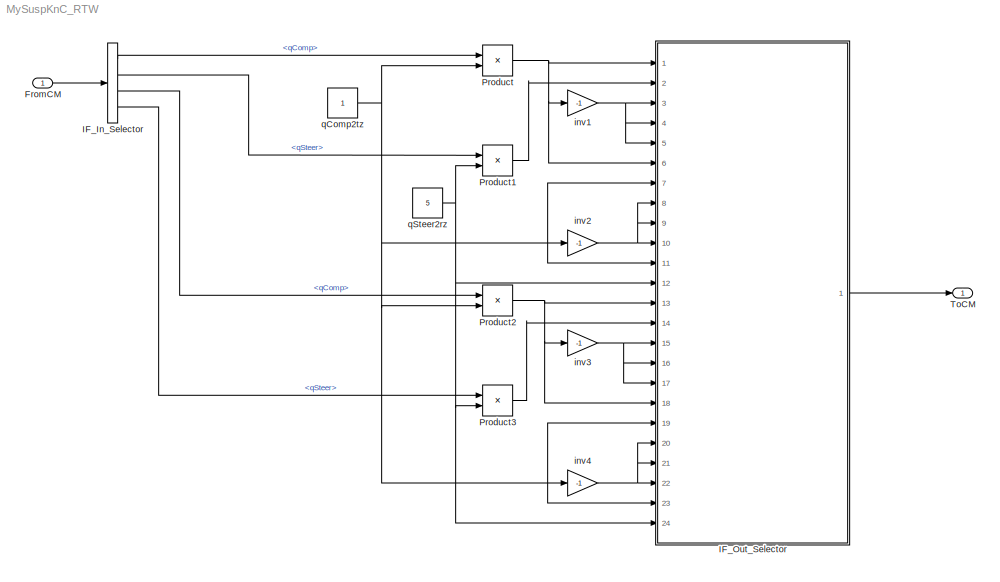
MODEL MySuspKnC_RTW
KIND model
CONFIG InitFcn = vehicle = 'Car'; if ~length(which('cmself')), cmenv; end\nMySuspKnC_RTW_bus
CONFIG PreLoadFcn = vehicle = 'Car'; if ~length(which('cmself')), cmenv; end\nMySuspKnC_RTW_bus
BLOCK [Inport] FromCM
  IconDisplay = Port number
  OutDataTypeStr = Bus: cmSuspKnCIn
  SID = 1
BLOCK [BusSelector] IF_In_Selector
  OutputAsBus = off
  OutputSignals = MainIn.qComp,MainIn.qSteer,OppIn.qComp,OppIn.qSteer
  Ports = [1, 4]
  SID = 2
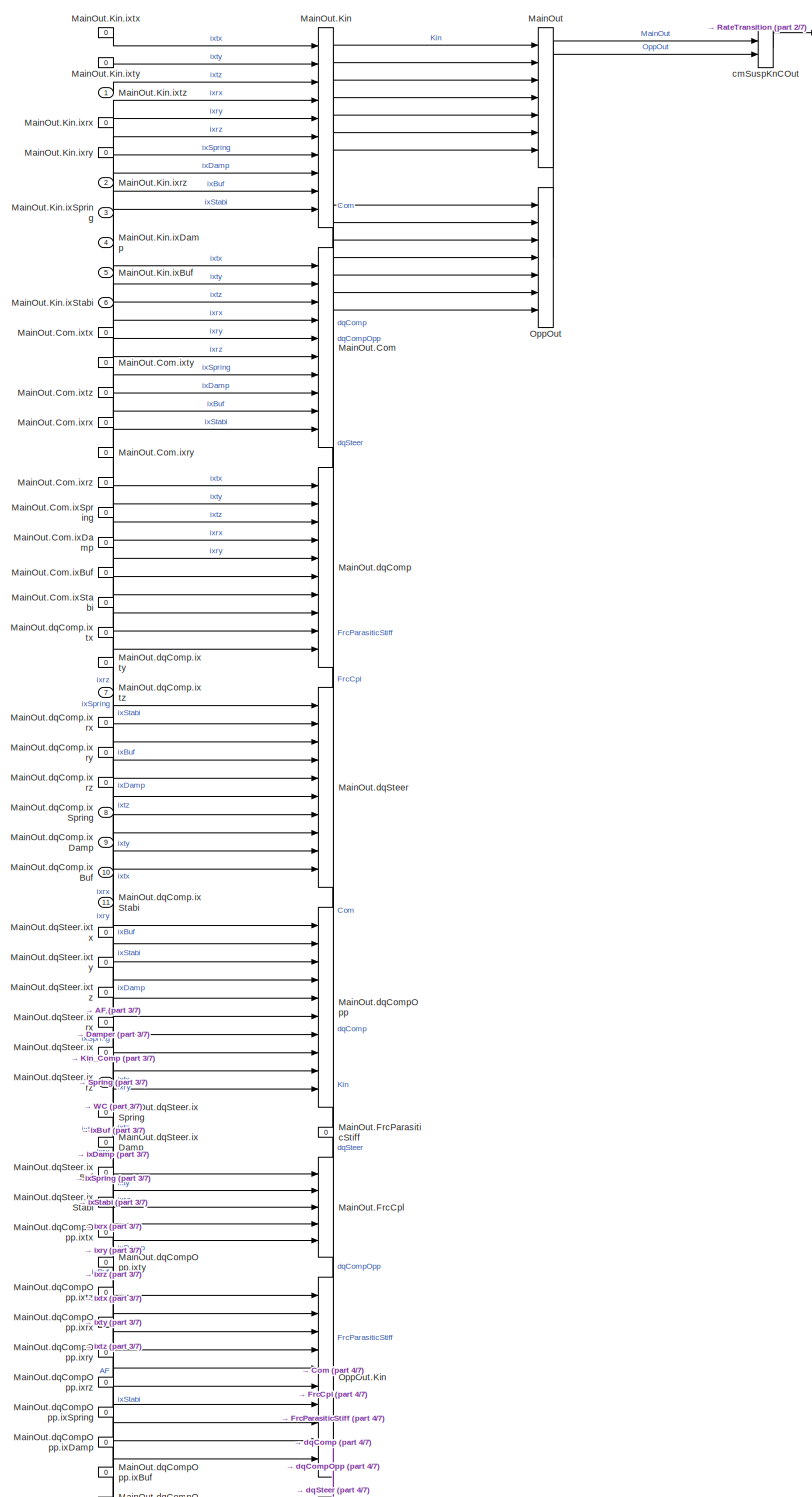
[diagram: IF_Out_Selector - part 1/7, top center region]
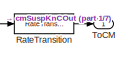
[diagram: IF_Out_Selector - part 2/7, top right region]
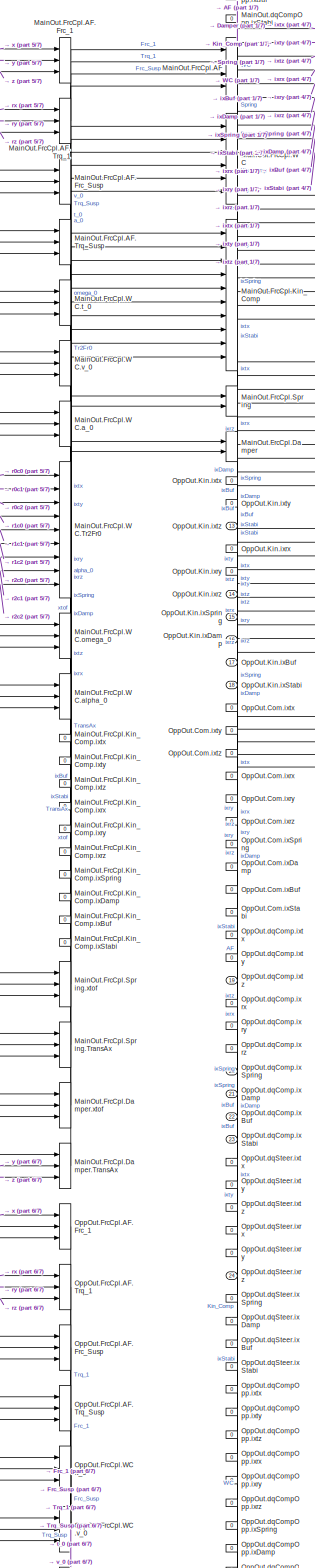
[diagram: IF_Out_Selector - part 3/7, middle left region]
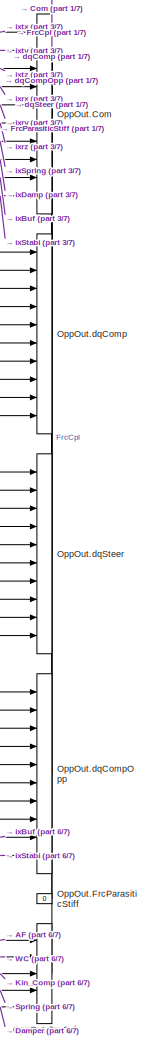
[diagram: IF_Out_Selector - part 4/7, central region]
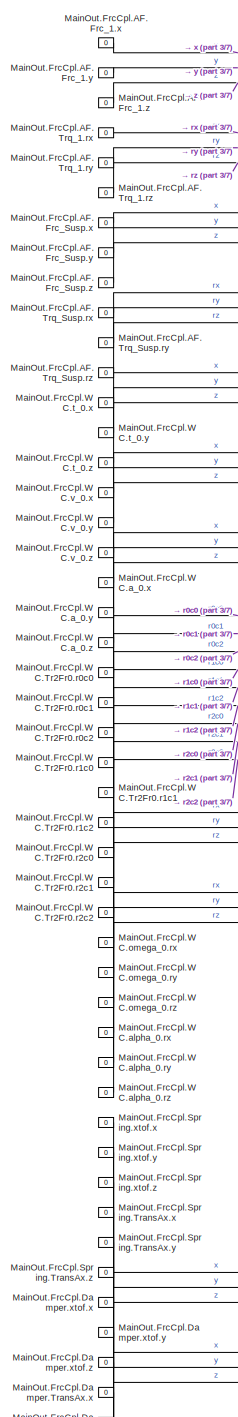
[diagram: IF_Out_Selector - part 5/7, middle left region]
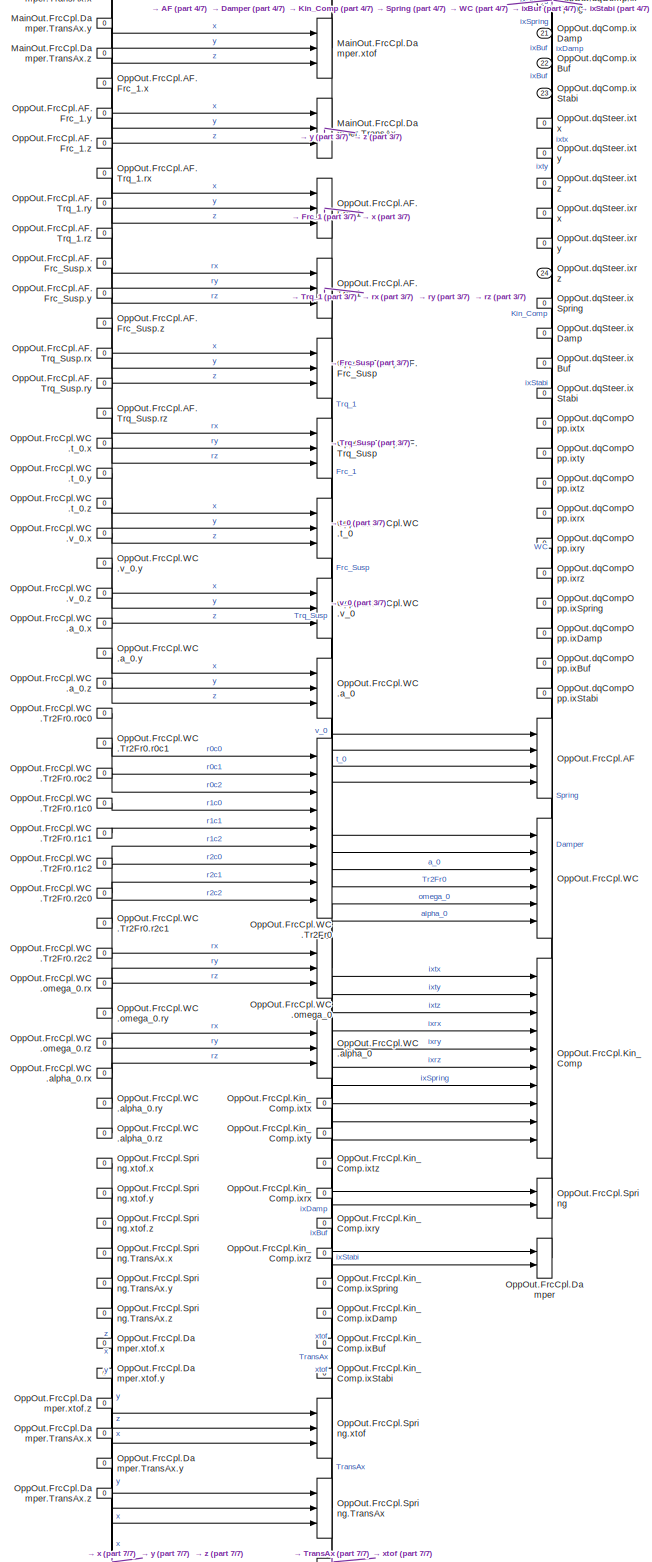
[diagram: IF_Out_Selector - part 6/7, bottom left region]
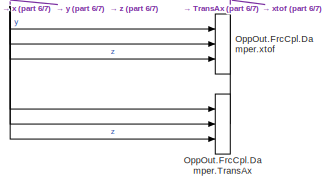
[diagram: IF_Out_Selector - part 7/7, bottom left region]
BLOCK [SubSystem] IF_Out_Selector
  OpenFcn = cmSignalSelect('SignalSelection_CB',gcb)
  Ports = [24, 1]
  RequestExecContextInheritance = off
  SID = 5
  UserData = DataTag0
  UserDataPersistent = on
BLOCK [BusCreator] IF_Out_Selector/MainOut
  InheritFromInputs = on
  Inputs = 7
  Ports = [7, 1]
  SID = 9
BLOCK [BusCreator] IF_Out_Selector/MainOut.Com
  InheritFromInputs = on
  Inputs = 10
  Ports = [10, 1]
  SID = 21
BLOCK [Constant] IF_Out_Selector/MainOut.Com.ixBuf
  SID = 30
  Value = 0
BLOCK [Constant] IF_Out_Selector/MainOut.Com.ixDamp
  SID = 29
  Value = 0
BLOCK [Constant] IF_Out_Selector/MainOut.Com.ixSpring
  SID = 28
  Value = 0
BLOCK [Constant] IF_Out_Selector/MainOut.Com.ixStabi
  SID = 31
  Value = 0
BLOCK [Constant] IF_Out_Selector/MainOut.Com.ixrx
  SID = 25
  Value = 0
BLOCK [Constant] IF_Out_Selector/MainOut.Com.ixry
  SID = 26
  Value = 0
BLOCK [Constant] IF_Out_Selector/MainOut.Com.ixrz
  SID = 27
  Value = 0
BLOCK [Constant] IF_Out_Selector/MainOut.Com.ixtx
  SID = 22
  Value = 0
BLOCK [Constant] IF_Out_Selector/MainOut.Com.ixty
  SID = 23
  Value = 0
BLOCK [Constant] IF_Out_Selector/MainOut.Com.ixtz
  SID = 24
  Value = 0
BLOCK [BusCreator] IF_Out_Selector/MainOut.FrcCpl
  InheritFromInputs = on
  Inputs = 5
  Ports = [5, 1]
  SID = 66
BLOCK [BusCreator] IF_Out_Selector/MainOut.FrcCpl.AF
  InheritFromInputs = on
  Inputs = 4
  Ports = [4, 1]
  SID = 67
BLOCK [BusCreator] IF_Out_Selector/MainOut.FrcCpl.AF.Frc_1
  InheritFromInputs = on
  Inputs = 3
  Ports = [3, 1]
  SID = 68
BLOCK [Constant] IF_Out_Selector/MainOut.FrcCpl.AF.Frc_1.x
  SID = 69
  Value = 0
BLOCK [Constant] IF_Out_Selector/MainOut.FrcCpl.AF.Frc_1.y
  SID = 70
  Value = 0
BLOCK [Constant] IF_Out_Selector/MainOut.FrcCpl.AF.Frc_1.z
  SID = 71
  Value = 0
BLOCK [BusCreator] IF_Out_Selector/MainOut.FrcCpl.AF.Frc_Susp
  InheritFromInputs = on
  Inputs = 3
  Ports = [3, 1]
  SID = 76
BLOCK [Constant] IF_Out_Selector/MainOut.FrcCpl.AF.Frc_Susp.x
  SID = 77
  Value = 0
BLOCK [Constant] IF_Out_Selector/MainOut.FrcCpl.AF.Frc_Susp.y
  SID = 78
  Value = 0
BLOCK [Constant] IF_Out_Selector/MainOut.FrcCpl.AF.Frc_Susp.z
  SID = 79
  Value = 0
BLOCK [BusCreator] IF_Out_Selector/MainOut.FrcCpl.AF.Trq_1
  InheritFromInputs = on
  Inputs = 3
  Ports = [3, 1]
  SID = 72
BLOCK [Constant] IF_Out_Selector/MainOut.FrcCpl.AF.Trq_1.rx
  SID = 73
  Value = 0
BLOCK [Constant] IF_Out_Selector/MainOut.FrcCpl.AF.Trq_1.ry
  SID = 74
  Value = 0
BLOCK [Constant] IF_Out_Selector/MainOut.FrcCpl.AF.Trq_1.rz
  SID = 75
  Value = 0
BLOCK [BusCreator] IF_Out_Selector/MainOut.FrcCpl.AF.Trq_Susp
  InheritFromInputs = on
  Inputs = 3
  Ports = [3, 1]
  SID = 80
BLOCK [Constant] IF_Out_Selector/MainOut.FrcCpl.AF.Trq_Susp.rx
  SID = 81
  Value = 0
BLOCK [Constant] IF_Out_Selector/MainOut.FrcCpl.AF.Trq_Susp.ry
  SID = 82
  Value = 0
BLOCK [Constant] IF_Out_Selector/MainOut.FrcCpl.AF.Trq_Susp.rz
  SID = 83
  Value = 0
BLOCK [BusCreator] IF_Out_Selector/MainOut.FrcCpl.Damper
  InheritFromInputs = on
  Inputs = 2
  Ports = [2, 1]
  SID = 135
BLOCK [BusCreator] IF_Out_Selector/MainOut.FrcCpl.Damper.TransAx
  InheritFromInputs = on
  Inputs = 3
  Ports = [3, 1]
  SID = 140
BLOCK [Constant] IF_Out_Selector/MainOut.FrcCpl.Damper.TransAx.x
  SID = 141
  Value = 0
BLOCK [Constant] IF_Out_Selector/MainOut.FrcCpl.Damper.TransAx.y
  SID = 142
  Value = 0
BLOCK [Constant] IF_Out_Selector/MainOut.FrcCpl.Damper.TransAx.z
  SID = 143
  Value = 0
BLOCK [BusCreator] IF_Out_Selector/MainOut.FrcCpl.Damper.xtof
  InheritFromInputs = on
  Inputs = 3
  Ports = [3, 1]
  SID = 136
BLOCK [Constant] IF_Out_Selector/MainOut.FrcCpl.Damper.xtof.x
  SID = 137
  Value = 0
BLOCK [Constant] IF_Out_Selector/MainOut.FrcCpl.Damper.xtof.y
  SID = 138
  Value = 0
BLOCK [Constant] IF_Out_Selector/MainOut.FrcCpl.Damper.xtof.z
  SID = 139
  Value = 0
BLOCK [BusCreator] IF_Out_Selector/MainOut.FrcCpl.Kin_Comp
  InheritFromInputs = on
  Inputs = 10
  Ports = [10, 1]
  SID = 115
BLOCK [Constant] IF_Out_Selector/MainOut.FrcCpl.Kin_Comp.ixBuf
  SID = 124
  Value = 0
BLOCK [Constant] IF_Out_Selector/MainOut.FrcCpl.Kin_Comp.ixDamp
  SID = 123
  Value = 0
BLOCK [Constant] IF_Out_Selector/MainOut.FrcCpl.Kin_Comp.ixSpring
  SID = 122
  Value = 0
BLOCK [Constant] IF_Out_Selector/MainOut.FrcCpl.Kin_Comp.ixStabi
  SID = 125
  Value = 0
BLOCK [Constant] IF_Out_Selector/MainOut.FrcCpl.Kin_Comp.ixrx
  SID = 119
  Value = 0
BLOCK [Constant] IF_Out_Selector/MainOut.FrcCpl.Kin_Comp.ixry
  SID = 120
  Value = 0
BLOCK [Constant] IF_Out_Selector/MainOut.FrcCpl.Kin_Comp.ixrz
  SID = 121
  Value = 0
BLOCK [Constant] IF_Out_Selector/MainOut.FrcCpl.Kin_Comp.ixtx
  SID = 116
  Value = 0
BLOCK [Constant] IF_Out_Selector/MainOut.FrcCpl.Kin_Comp.ixty
  SID = 117
  Value = 0
BLOCK [Constant] IF_Out_Selector/MainOut.FrcCpl.Kin_Comp.ixtz
  SID = 118
  Value = 0
BLOCK [BusCreator] IF_Out_Selector/MainOut.FrcCpl.Spring
  InheritFromInputs = on
  Inputs = 2
  Ports = [2, 1]
  SID = 126
BLOCK [BusCreator] IF_Out_Selector/MainOut.FrcCpl.Spring.TransAx
  InheritFromInputs = on
  Inputs = 3
  Ports = [3, 1]
  SID = 131
BLOCK [Constant] IF_Out_Selector/MainOut.FrcCpl.Spring.TransAx.x
  SID = 132
  Value = 0
BLOCK [Constant] IF_Out_Selector/MainOut.FrcCpl.Spring.TransAx.y
  SID = 133
  Value = 0
BLOCK [Constant] IF_Out_Selector/MainOut.FrcCpl.Spring.TransAx.z
  SID = 134
  Value = 0
BLOCK [BusCreator] IF_Out_Selector/MainOut.FrcCpl.Spring.xtof
  InheritFromInputs = on
  Inputs = 3
  Ports = [3, 1]
  SID = 127
BLOCK [Constant] IF_Out_Selector/MainOut.FrcCpl.Spring.xtof.x
  SID = 128
  Value = 0
BLOCK [Constant] IF_Out_Selector/MainOut.FrcCpl.Spring.xtof.y
  SID = 129
  Value = 0
BLOCK [Constant] IF_Out_Selector/MainOut.FrcCpl.Spring.xtof.z
  SID = 130
  Value = 0
BLOCK [BusCreator] IF_Out_Selector/MainOut.FrcCpl.WC
  InheritFromInputs = on
  Inputs = 6
  Ports = [6, 1]
  SID = 84
BLOCK [BusCreator] IF_Out_Selector/MainOut.FrcCpl.WC.Tr2Fr0
  InheritFromInputs = on
  Inputs = 9
  Ports = [9, 1]
  SID = 97
BLOCK [Constant] IF_Out_Selector/MainOut.FrcCpl.WC.Tr2Fr0.r0c0
  SID = 98
  Value = 0
BLOCK [Constant] IF_Out_Selector/MainOut.FrcCpl.WC.Tr2Fr0.r0c1
  SID = 99
  Value = 0
BLOCK [Constant] IF_Out_Selector/MainOut.FrcCpl.WC.Tr2Fr0.r0c2
  SID = 100
  Value = 0
BLOCK [Constant] IF_Out_Selector/MainOut.FrcCpl.WC.Tr2Fr0.r1c0
  SID = 101
  Value = 0
BLOCK [Constant] IF_Out_Selector/MainOut.FrcCpl.WC.Tr2Fr0.r1c1
  SID = 102
  Value = 0
BLOCK [Constant] IF_Out_Selector/MainOut.FrcCpl.WC.Tr2Fr0.r1c2
  SID = 103
  Value = 0
BLOCK [Constant] IF_Out_Selector/MainOut.FrcCpl.WC.Tr2Fr0.r2c0
  SID = 104
  Value = 0
BLOCK [Constant] IF_Out_Selector/MainOut.FrcCpl.WC.Tr2Fr0.r2c1
  SID = 105
  Value = 0
BLOCK [Constant] IF_Out_Selector/MainOut.FrcCpl.WC.Tr2Fr0.r2c2
  SID = 106
  Value = 0
BLOCK [BusCreator] IF_Out_Selector/MainOut.FrcCpl.WC.a_0
  InheritFromInputs = on
  Inputs = 3
  Ports = [3, 1]
  SID = 93
BLOCK [Constant] IF_Out_Selector/MainOut.FrcCpl.WC.a_0.x
  SID = 94
  Value = 0
BLOCK [Constant] IF_Out_Selector/MainOut.FrcCpl.WC.a_0.y
  SID = 95
  Value = 0
BLOCK [Constant] IF_Out_Selector/MainOut.FrcCpl.WC.a_0.z
  SID = 96
  Value = 0
BLOCK [BusCreator] IF_Out_Selector/MainOut.FrcCpl.WC.alpha_0
  InheritFromInputs = on
  Inputs = 3
  Ports = [3, 1]
  SID = 111
BLOCK [Constant] IF_Out_Selector/MainOut.FrcCpl.WC.alpha_0.rx
  SID = 112
  Value = 0
BLOCK [Constant] IF_Out_Selector/MainOut.FrcCpl.WC.alpha_0.ry
  SID = 113
  Value = 0
BLOCK [Constant] IF_Out_Selector/MainOut.FrcCpl.WC.alpha_0.rz
  SID = 114
  Value = 0
BLOCK [BusCreator] IF_Out_Selector/MainOut.FrcCpl.WC.omega_0
  InheritFromInputs = on
  Inputs = 3
  Ports = [3, 1]
  SID = 107
BLOCK [Constant] IF_Out_Selector/MainOut.FrcCpl.WC.omega_0.rx
  SID = 108
  Value = 0
BLOCK [Constant] IF_Out_Selector/MainOut.FrcCpl.WC.omega_0.ry
  SID = 109
  Value = 0
BLOCK [Constant] IF_Out_Selector/MainOut.FrcCpl.WC.omega_0.rz
  SID = 110
  Value = 0
BLOCK [BusCreator] IF_Out_Selector/MainOut.FrcCpl.WC.t_0
  InheritFromInputs = on
  Inputs = 3
  Ports = [3, 1]
  SID = 85
BLOCK [Constant] IF_Out_Selector/MainOut.FrcCpl.WC.t_0.x
  SID = 86
  Value = 0
BLOCK [Constant] IF_Out_Selector/MainOut.FrcCpl.WC.t_0.y
  SID = 87
  Value = 0
BLOCK [Constant] IF_Out_Selector/MainOut.FrcCpl.WC.t_0.z
  SID = 88
  Value = 0
BLOCK [BusCreator] IF_Out_Selector/MainOut.FrcCpl.WC.v_0
  InheritFromInputs = on
  Inputs = 3
  Ports = [3, 1]
  SID = 89
BLOCK [Constant] IF_Out_Selector/MainOut.FrcCpl.WC.v_0.x
  SID = 90
  Value = 0
BLOCK [Constant] IF_Out_Selector/MainOut.FrcCpl.WC.v_0.y
  SID = 91
  Value = 0
BLOCK [Constant] IF_Out_Selector/MainOut.FrcCpl.WC.v_0.z
  SID = 92
  Value = 0
BLOCK [Constant] IF_Out_Selector/MainOut.FrcParasiticStiff
  SID = 65
  Value = 0
BLOCK [BusCreator] IF_Out_Selector/MainOut.Kin
  InheritFromInputs = on
  Inputs = 10
  Ports = [10, 1]
  SID = 10
BLOCK [Inport] IF_Out_Selector/MainOut.Kin.ixBuf
  IconDisplay = Port number
  Port = 5
  SID = 293
BLOCK [Inport] IF_Out_Selector/MainOut.Kin.ixDamp
  IconDisplay = Port number
  Port = 4
  SID = 292
BLOCK [Inport] IF_Out_Selector/MainOut.Kin.ixSpring
  IconDisplay = Port number
  Port = 3
  SID = 291
BLOCK [Inport] IF_Out_Selector/MainOut.Kin.ixStabi
  IconDisplay = Port number
  Port = 6
  SID = 294
BLOCK [Constant] IF_Out_Selector/MainOut.Kin.ixrx
  SID = 312
  Value = 0
BLOCK [Constant] IF_Out_Selector/MainOut.Kin.ixry
  SID = 313
  Value = 0
BLOCK [Inport] IF_Out_Selector/MainOut.Kin.ixrz
  IconDisplay = Port number
  Port = 2
  SID = 290
BLOCK [Constant] IF_Out_Selector/MainOut.Kin.ixtx
  SID = 310
  Value = 0
BLOCK [Constant] IF_Out_Selector/MainOut.Kin.ixty
  SID = 311
  Value = 0
BLOCK [Inport] IF_Out_Selector/MainOut.Kin.ixtz
  IconDisplay = Port number
  SID = 287
BLOCK [BusCreator] IF_Out_Selector/MainOut.dqComp
  InheritFromInputs = on
  Inputs = 10
  Ports = [10, 1]
  SID = 32
BLOCK [Inport] IF_Out_Selector/MainOut.dqComp.ixBuf
  IconDisplay = Port number
  Port = 10
  SID = 298
BLOCK [Inport] IF_Out_Selector/MainOut.dqComp.ixDamp
  IconDisplay = Port number
  Port = 9
  SID = 297
BLOCK [Inport] IF_Out_Selector/MainOut.dqComp.ixSpring
  IconDisplay = Port number
  Port = 8
  SID = 296
BLOCK [Inport] IF_Out_Selector/MainOut.dqComp.ixStabi
  IconDisplay = Port number
  Port = 11
  SID = 299
BLOCK [Constant] IF_Out_Selector/MainOut.dqComp.ixrx
  SID = 36
  Value = 0
BLOCK [Constant] IF_Out_Selector/MainOut.dqComp.ixry
  SID = 37
  Value = 0
BLOCK [Constant] IF_Out_Selector/MainOut.dqComp.ixrz
  SID = 38
  Value = 0
BLOCK [Constant] IF_Out_Selector/MainOut.dqComp.ixtx
  SID = 33
  Value = 0
BLOCK [Constant] IF_Out_Selector/MainOut.dqComp.ixty
  SID = 34
  Value = 0
BLOCK [Inport] IF_Out_Selector/MainOut.dqComp.ixtz
  IconDisplay = Port number
  Port = 7
  SID = 295
BLOCK [BusCreator] IF_Out_Selector/MainOut.dqCompOpp
  InheritFromInputs = on
  Inputs = 10
  Ports = [10, 1]
  SID = 54
BLOCK [Constant] IF_Out_Selector/MainOut.dqCompOpp.ixBuf
  SID = 63
  Value = 0
BLOCK [Constant] IF_Out_Selector/MainOut.dqCompOpp.ixDamp
  SID = 62
  Value = 0
BLOCK [Constant] IF_Out_Selector/MainOut.dqCompOpp.ixSpring
  SID = 61
  Value = 0
BLOCK [Constant] IF_Out_Selector/MainOut.dqCompOpp.ixStabi
  SID = 64
  Value = 0
BLOCK [Constant] IF_Out_Selector/MainOut.dqCompOpp.ixrx
  SID = 58
  Value = 0
BLOCK [Constant] IF_Out_Selector/MainOut.dqCompOpp.ixry
  SID = 59
  Value = 0
BLOCK [Constant] IF_Out_Selector/MainOut.dqCompOpp.ixrz
  SID = 60
  Value = 0
BLOCK [Constant] IF_Out_Selector/MainOut.dqCompOpp.ixtx
  SID = 55
  Value = 0
BLOCK [Constant] IF_Out_Selector/MainOut.dqCompOpp.ixty
  SID = 56
  Value = 0
BLOCK [Constant] IF_Out_Selector/MainOut.dqCompOpp.ixtz
  SID = 57
  Value = 0
BLOCK [BusCreator] IF_Out_Selector/MainOut.dqSteer
  InheritFromInputs = on
  Inputs = 10
  Ports = [10, 1]
  SID = 43
BLOCK [Constant] IF_Out_Selector/MainOut.dqSteer.ixBuf
  SID = 52
  Value = 0
BLOCK [Constant] IF_Out_Selector/MainOut.dqSteer.ixDamp
  SID = 51
  Value = 0
BLOCK [Constant] IF_Out_Selector/MainOut.dqSteer.ixSpring
  SID = 50
  Value = 0
BLOCK [Constant] IF_Out_Selector/MainOut.dqSteer.ixStabi
  SID = 53
  Value = 0
BLOCK [Constant] IF_Out_Selector/MainOut.dqSteer.ixrx
  SID = 47
  Value = 0
BLOCK [Constant] IF_Out_Selector/MainOut.dqSteer.ixry
  SID = 48
  Value = 0
BLOCK [Inport] IF_Out_Selector/MainOut.dqSteer.ixrz
  IconDisplay = Port number
  Port = 12
  SID = 300
BLOCK [Constant] IF_Out_Selector/MainOut.dqSteer.ixtx
  SID = 44
  Value = 0
BLOCK [Constant] IF_Out_Selector/MainOut.dqSteer.ixty
  SID = 45
  Value = 0
BLOCK [Constant] IF_Out_Selector/MainOut.dqSteer.ixtz
  SID = 46
  Value = 0
BLOCK [BusCreator] IF_Out_Selector/OppOut
  InheritFromInputs = on
  Inputs = 7
  Ports = [7, 1]
  SID = 144
BLOCK [BusCreator] IF_Out_Selector/OppOut.Com
  InheritFromInputs = on
  Inputs = 10
  Ports = [10, 1]
  SID = 156
BLOCK [Constant] IF_Out_Selector/OppOut.Com.ixBuf
  SID = 165
  Value = 0
BLOCK [Constant] IF_Out_Selector/OppOut.Com.ixDamp
  SID = 164
  Value = 0
BLOCK [Constant] IF_Out_Selector/OppOut.Com.ixSpring
  SID = 163
  Value = 0
BLOCK [Constant] IF_Out_Selector/OppOut.Com.ixStabi
  SID = 166
  Value = 0
BLOCK [Constant] IF_Out_Selector/OppOut.Com.ixrx
  SID = 160
  Value = 0
BLOCK [Constant] IF_Out_Selector/OppOut.Com.ixry
  SID = 161
  Value = 0
BLOCK [Constant] IF_Out_Selector/OppOut.Com.ixrz
  SID = 162
  Value = 0
BLOCK [Constant] IF_Out_Selector/OppOut.Com.ixtx
  SID = 157
  Value = 0
BLOCK [Constant] IF_Out_Selector/OppOut.Com.ixty
  SID = 158
  Value = 0
BLOCK [Constant] IF_Out_Selector/OppOut.Com.ixtz
  SID = 159
  Value = 0
BLOCK [BusCreator] IF_Out_Selector/OppOut.FrcCpl
  InheritFromInputs = on
  Inputs = 5
  Ports = [5, 1]
  SID = 201
BLOCK [BusCreator] IF_Out_Selector/OppOut.FrcCpl.AF
  InheritFromInputs = on
  Inputs = 4
  Ports = [4, 1]
  SID = 202
BLOCK [BusCreator] IF_Out_Selector/OppOut.FrcCpl.AF.Frc_1
  InheritFromInputs = on
  Inputs = 3
  Ports = [3, 1]
  SID = 203
BLOCK [Constant] IF_Out_Selector/OppOut.FrcCpl.AF.Frc_1.x
  SID = 204
  Value = 0
BLOCK [Constant] IF_Out_Selector/OppOut.FrcCpl.AF.Frc_1.y
  SID = 205
  Value = 0
BLOCK [Constant] IF_Out_Selector/OppOut.FrcCpl.AF.Frc_1.z
  SID = 206
  Value = 0
BLOCK [BusCreator] IF_Out_Selector/OppOut.FrcCpl.AF.Frc_Susp
  InheritFromInputs = on
  Inputs = 3
  Ports = [3, 1]
  SID = 211
BLOCK [Constant] IF_Out_Selector/OppOut.FrcCpl.AF.Frc_Susp.x
  SID = 212
  Value = 0
BLOCK [Constant] IF_Out_Selector/OppOut.FrcCpl.AF.Frc_Susp.y
  SID = 213
  Value = 0
BLOCK [Constant] IF_Out_Selector/OppOut.FrcCpl.AF.Frc_Susp.z
  SID = 214
  Value = 0
BLOCK [BusCreator] IF_Out_Selector/OppOut.FrcCpl.AF.Trq_1
  InheritFromInputs = on
  Inputs = 3
  Ports = [3, 1]
  SID = 207
BLOCK [Constant] IF_Out_Selector/OppOut.FrcCpl.AF.Trq_1.rx
  SID = 208
  Value = 0
BLOCK [Constant] IF_Out_Selector/OppOut.FrcCpl.AF.Trq_1.ry
  SID = 209
  Value = 0
BLOCK [Constant] IF_Out_Selector/OppOut.FrcCpl.AF.Trq_1.rz
  SID = 210
  Value = 0
BLOCK [BusCreator] IF_Out_Selector/OppOut.FrcCpl.AF.Trq_Susp
  InheritFromInputs = on
  Inputs = 3
  Ports = [3, 1]
  SID = 215
BLOCK [Constant] IF_Out_Selector/OppOut.FrcCpl.AF.Trq_Susp.rx
  SID = 216
  Value = 0
BLOCK [Constant] IF_Out_Selector/OppOut.FrcCpl.AF.Trq_Susp.ry
  SID = 217
  Value = 0
BLOCK [Constant] IF_Out_Selector/OppOut.FrcCpl.AF.Trq_Susp.rz
  SID = 218
  Value = 0
BLOCK [BusCreator] IF_Out_Selector/OppOut.FrcCpl.Damper
  InheritFromInputs = on
  Inputs = 2
  Ports = [2, 1]
  SID = 270
BLOCK [BusCreator] IF_Out_Selector/OppOut.FrcCpl.Damper.TransAx
  InheritFromInputs = on
  Inputs = 3
  Ports = [3, 1]
  SID = 275
BLOCK [Constant] IF_Out_Selector/OppOut.FrcCpl.Damper.TransAx.x
  SID = 276
  Value = 0
BLOCK [Constant] IF_Out_Selector/OppOut.FrcCpl.Damper.TransAx.y
  SID = 277
  Value = 0
BLOCK [Constant] IF_Out_Selector/OppOut.FrcCpl.Damper.TransAx.z
  SID = 278
  Value = 0
BLOCK [BusCreator] IF_Out_Selector/OppOut.FrcCpl.Damper.xtof
  InheritFromInputs = on
  Inputs = 3
  Ports = [3, 1]
  SID = 271
BLOCK [Constant] IF_Out_Selector/OppOut.FrcCpl.Damper.xtof.x
  SID = 272
  Value = 0
BLOCK [Constant] IF_Out_Selector/OppOut.FrcCpl.Damper.xtof.y
  SID = 273
  Value = 0
BLOCK [Constant] IF_Out_Selector/OppOut.FrcCpl.Damper.xtof.z
  SID = 274
  Value = 0
BLOCK [BusCreator] IF_Out_Selector/OppOut.FrcCpl.Kin_Comp
  InheritFromInputs = on
  Inputs = 10
  Ports = [10, 1]
  SID = 250
BLOCK [Constant] IF_Out_Selector/OppOut.FrcCpl.Kin_Comp.ixBuf
  SID = 259
  Value = 0
BLOCK [Constant] IF_Out_Selector/OppOut.FrcCpl.Kin_Comp.ixDamp
  SID = 258
  Value = 0
BLOCK [Constant] IF_Out_Selector/OppOut.FrcCpl.Kin_Comp.ixSpring
  SID = 257
  Value = 0
BLOCK [Constant] IF_Out_Selector/OppOut.FrcCpl.Kin_Comp.ixStabi
  SID = 260
  Value = 0
BLOCK [Constant] IF_Out_Selector/OppOut.FrcCpl.Kin_Comp.ixrx
  SID = 254
  Value = 0
BLOCK [Constant] IF_Out_Selector/OppOut.FrcCpl.Kin_Comp.ixry
  SID = 255
  Value = 0
BLOCK [Constant] IF_Out_Selector/OppOut.FrcCpl.Kin_Comp.ixrz
  SID = 256
  Value = 0
BLOCK [Constant] IF_Out_Selector/OppOut.FrcCpl.Kin_Comp.ixtx
  SID = 251
  Value = 0
BLOCK [Constant] IF_Out_Selector/OppOut.FrcCpl.Kin_Comp.ixty
  SID = 252
  Value = 0
BLOCK [Constant] IF_Out_Selector/OppOut.FrcCpl.Kin_Comp.ixtz
  SID = 253
  Value = 0
BLOCK [BusCreator] IF_Out_Selector/OppOut.FrcCpl.Spring
  InheritFromInputs = on
  Inputs = 2
  Ports = [2, 1]
  SID = 261
BLOCK [BusCreator] IF_Out_Selector/OppOut.FrcCpl.Spring.TransAx
  InheritFromInputs = on
  Inputs = 3
  Ports = [3, 1]
  SID = 266
BLOCK [Constant] IF_Out_Selector/OppOut.FrcCpl.Spring.TransAx.x
  SID = 267
  Value = 0
BLOCK [Constant] IF_Out_Selector/OppOut.FrcCpl.Spring.TransAx.y
  SID = 268
  Value = 0
BLOCK [Constant] IF_Out_Selector/OppOut.FrcCpl.Spring.TransAx.z
  SID = 269
  Value = 0
BLOCK [BusCreator] IF_Out_Selector/OppOut.FrcCpl.Spring.xtof
  InheritFromInputs = on
  Inputs = 3
  Ports = [3, 1]
  SID = 262
BLOCK [Constant] IF_Out_Selector/OppOut.FrcCpl.Spring.xtof.x
  SID = 263
  Value = 0
BLOCK [Constant] IF_Out_Selector/OppOut.FrcCpl.Spring.xtof.y
  SID = 264
  Value = 0
BLOCK [Constant] IF_Out_Selector/OppOut.FrcCpl.Spring.xtof.z
  SID = 265
  Value = 0
BLOCK [BusCreator] IF_Out_Selector/OppOut.FrcCpl.WC
  InheritFromInputs = on
  Inputs = 6
  Ports = [6, 1]
  SID = 219
BLOCK [BusCreator] IF_Out_Selector/OppOut.FrcCpl.WC.Tr2Fr0
  InheritFromInputs = on
  Inputs = 9
  Ports = [9, 1]
  SID = 232
BLOCK [Constant] IF_Out_Selector/OppOut.FrcCpl.WC.Tr2Fr0.r0c0
  SID = 233
  Value = 0
BLOCK [Constant] IF_Out_Selector/OppOut.FrcCpl.WC.Tr2Fr0.r0c1
  SID = 234
  Value = 0
BLOCK [Constant] IF_Out_Selector/OppOut.FrcCpl.WC.Tr2Fr0.r0c2
  SID = 235
  Value = 0
BLOCK [Constant] IF_Out_Selector/OppOut.FrcCpl.WC.Tr2Fr0.r1c0
  SID = 236
  Value = 0
BLOCK [Constant] IF_Out_Selector/OppOut.FrcCpl.WC.Tr2Fr0.r1c1
  SID = 237
  Value = 0
BLOCK [Constant] IF_Out_Selector/OppOut.FrcCpl.WC.Tr2Fr0.r1c2
  SID = 238
  Value = 0
BLOCK [Constant] IF_Out_Selector/OppOut.FrcCpl.WC.Tr2Fr0.r2c0
  SID = 239
  Value = 0
BLOCK [Constant] IF_Out_Selector/OppOut.FrcCpl.WC.Tr2Fr0.r2c1
  SID = 240
  Value = 0
BLOCK [Constant] IF_Out_Selector/OppOut.FrcCpl.WC.Tr2Fr0.r2c2
  SID = 241
  Value = 0
BLOCK [BusCreator] IF_Out_Selector/OppOut.FrcCpl.WC.a_0
  InheritFromInputs = on
  Inputs = 3
  Ports = [3, 1]
  SID = 228
BLOCK [Constant] IF_Out_Selector/OppOut.FrcCpl.WC.a_0.x
  SID = 229
  Value = 0
BLOCK [Constant] IF_Out_Selector/OppOut.FrcCpl.WC.a_0.y
  SID = 230
  Value = 0
BLOCK [Constant] IF_Out_Selector/OppOut.FrcCpl.WC.a_0.z
  SID = 231
  Value = 0
BLOCK [BusCreator] IF_Out_Selector/OppOut.FrcCpl.WC.alpha_0
  InheritFromInputs = on
  Inputs = 3
  Ports = [3, 1]
  SID = 246
BLOCK [Constant] IF_Out_Selector/OppOut.FrcCpl.WC.alpha_0.rx
  SID = 247
  Value = 0
BLOCK [Constant] IF_Out_Selector/OppOut.FrcCpl.WC.alpha_0.ry
  SID = 248
  Value = 0
BLOCK [Constant] IF_Out_Selector/OppOut.FrcCpl.WC.alpha_0.rz
  SID = 249
  Value = 0
BLOCK [BusCreator] IF_Out_Selector/OppOut.FrcCpl.WC.omega_0
  InheritFromInputs = on
  Inputs = 3
  Ports = [3, 1]
  SID = 242
BLOCK [Constant] IF_Out_Selector/OppOut.FrcCpl.WC.omega_0.rx
  SID = 243
  Value = 0
BLOCK [Constant] IF_Out_Selector/OppOut.FrcCpl.WC.omega_0.ry
  SID = 244
  Value = 0
BLOCK [Constant] IF_Out_Selector/OppOut.FrcCpl.WC.omega_0.rz
  SID = 245
  Value = 0
BLOCK [BusCreator] IF_Out_Selector/OppOut.FrcCpl.WC.t_0
  InheritFromInputs = on
  Inputs = 3
  Ports = [3, 1]
  SID = 220
BLOCK [Constant] IF_Out_Selector/OppOut.FrcCpl.WC.t_0.x
  SID = 221
  Value = 0
BLOCK [Constant] IF_Out_Selector/OppOut.FrcCpl.WC.t_0.y
  SID = 222
  Value = 0
BLOCK [Constant] IF_Out_Selector/OppOut.FrcCpl.WC.t_0.z
  SID = 223
  Value = 0
BLOCK [BusCreator] IF_Out_Selector/OppOut.FrcCpl.WC.v_0
  InheritFromInputs = on
  Inputs = 3
  Ports = [3, 1]
  SID = 224
BLOCK [Constant] IF_Out_Selector/OppOut.FrcCpl.WC.v_0.x
  SID = 225
  Value = 0
BLOCK [Constant] IF_Out_Selector/OppOut.FrcCpl.WC.v_0.y
  SID = 226
  Value = 0
BLOCK [Constant] IF_Out_Selector/OppOut.FrcCpl.WC.v_0.z
  SID = 227
  Value = 0
BLOCK [Constant] IF_Out_Selector/OppOut.FrcParasiticStiff
  SID = 200
  Value = 0
BLOCK [BusCreator] IF_Out_Selector/OppOut.Kin
  InheritFromInputs = on
  Inputs = 10
  Ports = [10, 1]
  SID = 145
BLOCK [Inport] IF_Out_Selector/OppOut.Kin.ixBuf
  IconDisplay = Port number
  Port = 17
  SID = 320
BLOCK [Inport] IF_Out_Selector/OppOut.Kin.ixDamp
  IconDisplay = Port number
  Port = 16
  SID = 319
BLOCK [Inport] IF_Out_Selector/OppOut.Kin.ixSpring
  IconDisplay = Port number
  Port = 15
  SID = 318
BLOCK [Inport] IF_Out_Selector/OppOut.Kin.ixStabi
  IconDisplay = Port number
  Port = 18
  SID = 321
BLOCK [Constant] IF_Out_Selector/OppOut.Kin.ixrx
  SID = 149
  Value = 0
BLOCK [Constant] IF_Out_Selector/OppOut.Kin.ixry
  SID = 150
  Value = 0
BLOCK [Inport] IF_Out_Selector/OppOut.Kin.ixrz
  IconDisplay = Port number
  Port = 14
  SID = 317
BLOCK [Constant] IF_Out_Selector/OppOut.Kin.ixtx
  SID = 146
  Value = 0
BLOCK [Constant] IF_Out_Selector/OppOut.Kin.ixty
  SID = 147
  Value = 0
BLOCK [Inport] IF_Out_Selector/OppOut.Kin.ixtz
  IconDisplay = Port number
  Port = 13
  SID = 316
BLOCK [BusCreator] IF_Out_Selector/OppOut.dqComp
  InheritFromInputs = on
  Inputs = 10
  Ports = [10, 1]
  SID = 167
BLOCK [Inport] IF_Out_Selector/OppOut.dqComp.ixBuf
  IconDisplay = Port number
  Port = 22
  SID = 325
BLOCK [Inport] IF_Out_Selector/OppOut.dqComp.ixDamp
  IconDisplay = Port number
  Port = 21
  SID = 324
BLOCK [Inport] IF_Out_Selector/OppOut.dqComp.ixSpring
  IconDisplay = Port number
  Port = 20
  SID = 323
BLOCK [Inport] IF_Out_Selector/OppOut.dqComp.ixStabi
  IconDisplay = Port number
  Port = 23
  SID = 326
BLOCK [Constant] IF_Out_Selector/OppOut.dqComp.ixrx
  SID = 171
  Value = 0
BLOCK [Constant] IF_Out_Selector/OppOut.dqComp.ixry
  SID = 172
  Value = 0
BLOCK [Constant] IF_Out_Selector/OppOut.dqComp.ixrz
  SID = 173
  Value = 0
BLOCK [Constant] IF_Out_Selector/OppOut.dqComp.ixtx
  SID = 168
  Value = 0
BLOCK [Constant] IF_Out_Selector/OppOut.dqComp.ixty
  SID = 169
  Value = 0
BLOCK [Inport] IF_Out_Selector/OppOut.dqComp.ixtz
  IconDisplay = Port number
  Port = 19
  SID = 322
BLOCK [BusCreator] IF_Out_Selector/OppOut.dqCompOpp
  InheritFromInputs = on
  Inputs = 10
  Ports = [10, 1]
  SID = 189
BLOCK [Constant] IF_Out_Selector/OppOut.dqCompOpp.ixBuf
  SID = 198
  Value = 0
BLOCK [Constant] IF_Out_Selector/OppOut.dqCompOpp.ixDamp
  SID = 197
  Value = 0
BLOCK [Constant] IF_Out_Selector/OppOut.dqCompOpp.ixSpring
  SID = 196
  Value = 0
BLOCK [Constant] IF_Out_Selector/OppOut.dqCompOpp.ixStabi
  SID = 199
  Value = 0
BLOCK [Constant] IF_Out_Selector/OppOut.dqCompOpp.ixrx
  SID = 193
  Value = 0
BLOCK [Constant] IF_Out_Selector/OppOut.dqCompOpp.ixry
  SID = 194
  Value = 0
BLOCK [Constant] IF_Out_Selector/OppOut.dqCompOpp.ixrz
  SID = 195
  Value = 0
BLOCK [Constant] IF_Out_Selector/OppOut.dqCompOpp.ixtx
  SID = 190
  Value = 0
BLOCK [Constant] IF_Out_Selector/OppOut.dqCompOpp.ixty
  SID = 191
  Value = 0
BLOCK [Constant] IF_Out_Selector/OppOut.dqCompOpp.ixtz
  SID = 192
  Value = 0
BLOCK [BusCreator] IF_Out_Selector/OppOut.dqSteer
  InheritFromInputs = on
  Inputs = 10
  Ports = [10, 1]
  SID = 178
BLOCK [Constant] IF_Out_Selector/OppOut.dqSteer.ixBuf
  SID = 187
  Value = 0
BLOCK [Constant] IF_Out_Selector/OppOut.dqSteer.ixDamp
  SID = 186
  Value = 0
BLOCK [Constant] IF_Out_Selector/OppOut.dqSteer.ixSpring
  SID = 185
  Value = 0
BLOCK [Constant] IF_Out_Selector/OppOut.dqSteer.ixStabi
  SID = 188
  Value = 0
BLOCK [Constant] IF_Out_Selector/OppOut.dqSteer.ixrx
  SID = 182
  Value = 0
BLOCK [Constant] IF_Out_Selector/OppOut.dqSteer.ixry
  SID = 183
  Value = 0
BLOCK [Inport] IF_Out_Selector/OppOut.dqSteer.ixrz
  IconDisplay = Port number
  Port = 24
  SID = 327
BLOCK [Constant] IF_Out_Selector/OppOut.dqSteer.ixtx
  SID = 179
  Value = 0
BLOCK [Constant] IF_Out_Selector/OppOut.dqSteer.ixty
  SID = 180
  Value = 0
BLOCK [Constant] IF_Out_Selector/OppOut.dqSteer.ixtz
  SID = 181
  Value = 0
BLOCK [RateTransition] IF_Out_Selector/RateTransition
  OutPortSampleTime = str2num(get_param(bdroot,'FixedStep'))
  SID = 6
BLOCK [Outport] IF_Out_Selector/ToCM
  IconDisplay = Port number
  SID = 7
BLOCK [BusCreator] IF_Out_Selector/cmSuspKnCOut
  InheritFromInputs = on
  Inputs = 2
  Ports = [2, 1]
  SID = 8
BLOCK [Product] Product
  InputSameDT = off
  OutDataTypeStr = Inherit: Inherit via internal rule
  Ports = [2, 1]
  RndMeth = Floor
  SID = 305
  SaturateOnIntegerOverflow = off
BLOCK [Product] Product1
  InputSameDT = off
  OutDataTypeStr = Inherit: Inherit via internal rule
  Ports = [2, 1]
  RndMeth = Floor
  SID = 307
  SaturateOnIntegerOverflow = off
BLOCK [Product] Product2
  InputSameDT = off
  OutDataTypeStr = Inherit: Inherit via internal rule
  Ports = [2, 1]
  RndMeth = Floor
  SID = 385
  SaturateOnIntegerOverflow = off
BLOCK [Product] Product3
  InputSameDT = off
  OutDataTypeStr = Inherit: Inherit via internal rule
  Ports = [2, 1]
  RndMeth = Floor
  SID = 386
  SaturateOnIntegerOverflow = off
BLOCK [Outport] ToCM
  IconDisplay = Port number
  OutDataTypeStr = Bus: cmSuspKnCOut
  SID = 4
BLOCK [Gain] inv1
  Gain = -1
  OutDataTypeStr = Inherit: Inherit via internal rule
  ParamDataTypeStr = Inherit: Inherit via internal rule
  SID = 315
  SaturateOnIntegerOverflow = off
BLOCK [Gain] inv2
  Gain = -1
  OutDataTypeStr = Inherit: Inherit via internal rule
  ParamDataTypeStr = Inherit: Inherit via internal rule
  SID = 314
  SaturateOnIntegerOverflow = off
BLOCK [Gain] inv3
  Gain = -1
  OutDataTypeStr = Inherit: Inherit via internal rule
  ParamDataTypeStr = Inherit: Inherit via internal rule
  SID = 390
  SaturateOnIntegerOverflow = off
BLOCK [Gain] inv4
  Gain = -1
  OutDataTypeStr = Inherit: Inherit via internal rule
  ParamDataTypeStr = Inherit: Inherit via internal rule
  SID = 391
  SaturateOnIntegerOverflow = off
BLOCK [Constant] qComp2tz
  SID = 301
BLOCK [Constant] qSteer2rz
  SID = 304
  Value = 5
LINE FromCM:1 -> IF_In_Selector:1
LINE IF_In_Selector:1 -> Product:1
LINE IF_In_Selector:2 -> Product1:1
LINE IF_In_Selector:3 -> Product2:1
LINE IF_In_Selector:4 -> Product3:1
LINE IF_Out_Selector/MainOut.Com.ixBuf:1 -> IF_Out_Selector/MainOut.Com:9
LINE IF_Out_Selector/MainOut.Com.ixDamp:1 -> IF_Out_Selector/MainOut.Com:8
LINE IF_Out_Selector/MainOut.Com.ixSpring:1 -> IF_Out_Selector/MainOut.Com:7
LINE IF_Out_Selector/MainOut.Com.ixStabi:1 -> IF_Out_Selector/MainOut.Com:10
LINE IF_Out_Selector/MainOut.Com.ixrx:1 -> IF_Out_Selector/MainOut.Com:4
LINE IF_Out_Selector/MainOut.Com.ixry:1 -> IF_Out_Selector/MainOut.Com:5
LINE IF_Out_Selector/MainOut.Com.ixrz:1 -> IF_Out_Selector/MainOut.Com:6
LINE IF_Out_Selector/MainOut.Com.ixtx:1 -> IF_Out_Selector/MainOut.Com:1
LINE IF_Out_Selector/MainOut.Com.ixty:1 -> IF_Out_Selector/MainOut.Com:2
LINE IF_Out_Selector/MainOut.Com.ixtz:1 -> IF_Out_Selector/MainOut.Com:3
LINE IF_Out_Selector/MainOut.Com:1 -> IF_Out_Selector/MainOut:2
LINE IF_Out_Selector/MainOut.FrcCpl.AF.Frc_1.x:1 -> IF_Out_Selector/MainOut.FrcCpl.AF.Frc_1:1
LINE IF_Out_Selector/MainOut.FrcCpl.AF.Frc_1.y:1 -> IF_Out_Selector/MainOut.FrcCpl.AF.Frc_1:2
LINE IF_Out_Selector/MainOut.FrcCpl.AF.Frc_1.z:1 -> IF_Out_Selector/MainOut.FrcCpl.AF.Frc_1:3
LINE IF_Out_Selector/MainOut.FrcCpl.AF.Frc_1:1 -> IF_Out_Selector/MainOut.FrcCpl.AF:1
LINE IF_Out_Selector/MainOut.FrcCpl.AF.Frc_Susp.x:1 -> IF_Out_Selector/MainOut.FrcCpl.AF.Frc_Susp:1
LINE IF_Out_Selector/MainOut.FrcCpl.AF.Frc_Susp.y:1 -> IF_Out_Selector/MainOut.FrcCpl.AF.Frc_Susp:2
LINE IF_Out_Selector/MainOut.FrcCpl.AF.Frc_Susp.z:1 -> IF_Out_Selector/MainOut.FrcCpl.AF.Frc_Susp:3
LINE IF_Out_Selector/MainOut.FrcCpl.AF.Frc_Susp:1 -> IF_Out_Selector/MainOut.FrcCpl.AF:3
LINE IF_Out_Selector/MainOut.FrcCpl.AF.Trq_1.rx:1 -> IF_Out_Selector/MainOut.FrcCpl.AF.Trq_1:1
LINE IF_Out_Selector/MainOut.FrcCpl.AF.Trq_1.ry:1 -> IF_Out_Selector/MainOut.FrcCpl.AF.Trq_1:2
LINE IF_Out_Selector/MainOut.FrcCpl.AF.Trq_1.rz:1 -> IF_Out_Selector/MainOut.FrcCpl.AF.Trq_1:3
LINE IF_Out_Selector/MainOut.FrcCpl.AF.Trq_1:1 -> IF_Out_Selector/MainOut.FrcCpl.AF:2
LINE IF_Out_Selector/MainOut.FrcCpl.AF.Trq_Susp.rx:1 -> IF_Out_Selector/MainOut.FrcCpl.AF.Trq_Susp:1
LINE IF_Out_Selector/MainOut.FrcCpl.AF.Trq_Susp.ry:1 -> IF_Out_Selector/MainOut.FrcCpl.AF.Trq_Susp:2
LINE IF_Out_Selector/MainOut.FrcCpl.AF.Trq_Susp.rz:1 -> IF_Out_Selector/MainOut.FrcCpl.AF.Trq_Susp:3
LINE IF_Out_Selector/MainOut.FrcCpl.AF.Trq_Susp:1 -> IF_Out_Selector/MainOut.FrcCpl.AF:4
LINE IF_Out_Selector/MainOut.FrcCpl.AF:1 -> IF_Out_Selector/MainOut.FrcCpl:1
LINE IF_Out_Selector/MainOut.FrcCpl.Damper.TransAx.x:1 -> IF_Out_Selector/MainOut.FrcCpl.Damper.TransAx:1
LINE IF_Out_Selector/MainOut.FrcCpl.Damper.TransAx.y:1 -> IF_Out_Selector/MainOut.FrcCpl.Damper.TransAx:2
LINE IF_Out_Selector/MainOut.FrcCpl.Damper.TransAx.z:1 -> IF_Out_Selector/MainOut.FrcCpl.Damper.TransAx:3
LINE IF_Out_Selector/MainOut.FrcCpl.Damper.TransAx:1 -> IF_Out_Selector/MainOut.FrcCpl.Damper:2
LINE IF_Out_Selector/MainOut.FrcCpl.Damper.xtof.x:1 -> IF_Out_Selector/MainOut.FrcCpl.Damper.xtof:1
LINE IF_Out_Selector/MainOut.FrcCpl.Damper.xtof.y:1 -> IF_Out_Selector/MainOut.FrcCpl.Damper.xtof:2
LINE IF_Out_Selector/MainOut.FrcCpl.Damper.xtof.z:1 -> IF_Out_Selector/MainOut.FrcCpl.Damper.xtof:3
LINE IF_Out_Selector/MainOut.FrcCpl.Damper.xtof:1 -> IF_Out_Selector/MainOut.FrcCpl.Damper:1
LINE IF_Out_Selector/MainOut.FrcCpl.Damper:1 -> IF_Out_Selector/MainOut.FrcCpl:5
LINE IF_Out_Selector/MainOut.FrcCpl.Kin_Comp.ixBuf:1 -> IF_Out_Selector/MainOut.FrcCpl.Kin_Comp:9
LINE IF_Out_Selector/MainOut.FrcCpl.Kin_Comp.ixDamp:1 -> IF_Out_Selector/MainOut.FrcCpl.Kin_Comp:8
LINE IF_Out_Selector/MainOut.FrcCpl.Kin_Comp.ixSpring:1 -> IF_Out_Selector/MainOut.FrcCpl.Kin_Comp:7
LINE IF_Out_Selector/MainOut.FrcCpl.Kin_Comp.ixStabi:1 -> IF_Out_Selector/MainOut.FrcCpl.Kin_Comp:10
LINE IF_Out_Selector/MainOut.FrcCpl.Kin_Comp.ixrx:1 -> IF_Out_Selector/MainOut.FrcCpl.Kin_Comp:4
LINE IF_Out_Selector/MainOut.FrcCpl.Kin_Comp.ixry:1 -> IF_Out_Selector/MainOut.FrcCpl.Kin_Comp:5
LINE IF_Out_Selector/MainOut.FrcCpl.Kin_Comp.ixrz:1 -> IF_Out_Selector/MainOut.FrcCpl.Kin_Comp:6
LINE IF_Out_Selector/MainOut.FrcCpl.Kin_Comp.ixtx:1 -> IF_Out_Selector/MainOut.FrcCpl.Kin_Comp:1
LINE IF_Out_Selector/MainOut.FrcCpl.Kin_Comp.ixty:1 -> IF_Out_Selector/MainOut.FrcCpl.Kin_Comp:2
LINE IF_Out_Selector/MainOut.FrcCpl.Kin_Comp.ixtz:1 -> IF_Out_Selector/MainOut.FrcCpl.Kin_Comp:3
LINE IF_Out_Selector/MainOut.FrcCpl.Kin_Comp:1 -> IF_Out_Selector/MainOut.FrcCpl:3
LINE IF_Out_Selector/MainOut.FrcCpl.Spring.TransAx.x:1 -> IF_Out_Selector/MainOut.FrcCpl.Spring.TransAx:1
LINE IF_Out_Selector/MainOut.FrcCpl.Spring.TransAx.y:1 -> IF_Out_Selector/MainOut.FrcCpl.Spring.TransAx:2
LINE IF_Out_Selector/MainOut.FrcCpl.Spring.TransAx.z:1 -> IF_Out_Selector/MainOut.FrcCpl.Spring.TransAx:3
LINE IF_Out_Selector/MainOut.FrcCpl.Spring.TransAx:1 -> IF_Out_Selector/MainOut.FrcCpl.Spring:2
LINE IF_Out_Selector/MainOut.FrcCpl.Spring.xtof.x:1 -> IF_Out_Selector/MainOut.FrcCpl.Spring.xtof:1
LINE IF_Out_Selector/MainOut.FrcCpl.Spring.xtof.y:1 -> IF_Out_Selector/MainOut.FrcCpl.Spring.xtof:2
LINE IF_Out_Selector/MainOut.FrcCpl.Spring.xtof.z:1 -> IF_Out_Selector/MainOut.FrcCpl.Spring.xtof:3
LINE IF_Out_Selector/MainOut.FrcCpl.Spring.xtof:1 -> IF_Out_Selector/MainOut.FrcCpl.Spring:1
LINE IF_Out_Selector/MainOut.FrcCpl.Spring:1 -> IF_Out_Selector/MainOut.FrcCpl:4
LINE IF_Out_Selector/MainOut.FrcCpl.WC.Tr2Fr0.r0c0:1 -> IF_Out_Selector/MainOut.FrcCpl.WC.Tr2Fr0:1
LINE IF_Out_Selector/MainOut.FrcCpl.WC.Tr2Fr0.r0c1:1 -> IF_Out_Selector/MainOut.FrcCpl.WC.Tr2Fr0:2
LINE IF_Out_Selector/MainOut.FrcCpl.WC.Tr2Fr0.r0c2:1 -> IF_Out_Selector/MainOut.FrcCpl.WC.Tr2Fr0:3
LINE IF_Out_Selector/MainOut.FrcCpl.WC.Tr2Fr0.r1c0:1 -> IF_Out_Selector/MainOut.FrcCpl.WC.Tr2Fr0:4
LINE IF_Out_Selector/MainOut.FrcCpl.WC.Tr2Fr0.r1c1:1 -> IF_Out_Selector/MainOut.FrcCpl.WC.Tr2Fr0:5
LINE IF_Out_Selector/MainOut.FrcCpl.WC.Tr2Fr0.r1c2:1 -> IF_Out_Selector/MainOut.FrcCpl.WC.Tr2Fr0:6
LINE IF_Out_Selector/MainOut.FrcCpl.WC.Tr2Fr0.r2c0:1 -> IF_Out_Selector/MainOut.FrcCpl.WC.Tr2Fr0:7
LINE IF_Out_Selector/MainOut.FrcCpl.WC.Tr2Fr0.r2c1:1 -> IF_Out_Selector/MainOut.FrcCpl.WC.Tr2Fr0:8
LINE IF_Out_Selector/MainOut.FrcCpl.WC.Tr2Fr0.r2c2:1 -> IF_Out_Selector/MainOut.FrcCpl.WC.Tr2Fr0:9
LINE IF_Out_Selector/MainOut.FrcCpl.WC.Tr2Fr0:1 -> IF_Out_Selector/MainOut.FrcCpl.WC:4
LINE IF_Out_Selector/MainOut.FrcCpl.WC.a_0.x:1 -> IF_Out_Selector/MainOut.FrcCpl.WC.a_0:1
LINE IF_Out_Selector/MainOut.FrcCpl.WC.a_0.y:1 -> IF_Out_Selector/MainOut.FrcCpl.WC.a_0:2
LINE IF_Out_Selector/MainOut.FrcCpl.WC.a_0.z:1 -> IF_Out_Selector/MainOut.FrcCpl.WC.a_0:3
LINE IF_Out_Selector/MainOut.FrcCpl.WC.a_0:1 -> IF_Out_Selector/MainOut.FrcCpl.WC:3
LINE IF_Out_Selector/MainOut.FrcCpl.WC.alpha_0.rx:1 -> IF_Out_Selector/MainOut.FrcCpl.WC.alpha_0:1
LINE IF_Out_Selector/MainOut.FrcCpl.WC.alpha_0.ry:1 -> IF_Out_Selector/MainOut.FrcCpl.WC.alpha_0:2
LINE IF_Out_Selector/MainOut.FrcCpl.WC.alpha_0.rz:1 -> IF_Out_Selector/MainOut.FrcCpl.WC.alpha_0:3
LINE IF_Out_Selector/MainOut.FrcCpl.WC.alpha_0:1 -> IF_Out_Selector/MainOut.FrcCpl.WC:6
LINE IF_Out_Selector/MainOut.FrcCpl.WC.omega_0.rx:1 -> IF_Out_Selector/MainOut.FrcCpl.WC.omega_0:1
LINE IF_Out_Selector/MainOut.FrcCpl.WC.omega_0.ry:1 -> IF_Out_Selector/MainOut.FrcCpl.WC.omega_0:2
LINE IF_Out_Selector/MainOut.FrcCpl.WC.omega_0.rz:1 -> IF_Out_Selector/MainOut.FrcCpl.WC.omega_0:3
LINE IF_Out_Selector/MainOut.FrcCpl.WC.omega_0:1 -> IF_Out_Selector/MainOut.FrcCpl.WC:5
LINE IF_Out_Selector/MainOut.FrcCpl.WC.t_0.x:1 -> IF_Out_Selector/MainOut.FrcCpl.WC.t_0:1
LINE IF_Out_Selector/MainOut.FrcCpl.WC.t_0.y:1 -> IF_Out_Selector/MainOut.FrcCpl.WC.t_0:2
LINE IF_Out_Selector/MainOut.FrcCpl.WC.t_0.z:1 -> IF_Out_Selector/MainOut.FrcCpl.WC.t_0:3
LINE IF_Out_Selector/MainOut.FrcCpl.WC.t_0:1 -> IF_Out_Selector/MainOut.FrcCpl.WC:1
LINE IF_Out_Selector/MainOut.FrcCpl.WC.v_0.x:1 -> IF_Out_Selector/MainOut.FrcCpl.WC.v_0:1
LINE IF_Out_Selector/MainOut.FrcCpl.WC.v_0.y:1 -> IF_Out_Selector/MainOut.FrcCpl.WC.v_0:2
LINE IF_Out_Selector/MainOut.FrcCpl.WC.v_0.z:1 -> IF_Out_Selector/MainOut.FrcCpl.WC.v_0:3
LINE IF_Out_Selector/MainOut.FrcCpl.WC.v_0:1 -> IF_Out_Selector/MainOut.FrcCpl.WC:2
LINE IF_Out_Selector/MainOut.FrcCpl.WC:1 -> IF_Out_Selector/MainOut.FrcCpl:2
LINE IF_Out_Selector/MainOut.FrcCpl:1 -> IF_Out_Selector/MainOut:7
LINE IF_Out_Selector/MainOut.FrcParasiticStiff:1 -> IF_Out_Selector/MainOut:6
LINE IF_Out_Selector/MainOut.Kin.ixBuf:1 -> IF_Out_Selector/MainOut.Kin:9
LINE IF_Out_Selector/MainOut.Kin.ixDamp:1 -> IF_Out_Selector/MainOut.Kin:8
LINE IF_Out_Selector/MainOut.Kin.ixSpring:1 -> IF_Out_Selector/MainOut.Kin:7
LINE IF_Out_Selector/MainOut.Kin.ixStabi:1 -> IF_Out_Selector/MainOut.Kin:10
LINE IF_Out_Selector/MainOut.Kin.ixrx:1 -> IF_Out_Selector/MainOut.Kin:4
LINE IF_Out_Selector/MainOut.Kin.ixry:1 -> IF_Out_Selector/MainOut.Kin:5
LINE IF_Out_Selector/MainOut.Kin.ixrz:1 -> IF_Out_Selector/MainOut.Kin:6
LINE IF_Out_Selector/MainOut.Kin.ixtx:1 -> IF_Out_Selector/MainOut.Kin:1
LINE IF_Out_Selector/MainOut.Kin.ixty:1 -> IF_Out_Selector/MainOut.Kin:2
LINE IF_Out_Selector/MainOut.Kin.ixtz:1 -> IF_Out_Selector/MainOut.Kin:3
LINE IF_Out_Selector/MainOut.Kin:1 -> IF_Out_Selector/MainOut:1
LINE IF_Out_Selector/MainOut.dqComp.ixBuf:1 -> IF_Out_Selector/MainOut.dqComp:9
LINE IF_Out_Selector/MainOut.dqComp.ixDamp:1 -> IF_Out_Selector/MainOut.dqComp:8
LINE IF_Out_Selector/MainOut.dqComp.ixSpring:1 -> IF_Out_Selector/MainOut.dqComp:7
LINE IF_Out_Selector/MainOut.dqComp.ixStabi:1 -> IF_Out_Selector/MainOut.dqComp:10
LINE IF_Out_Selector/MainOut.dqComp.ixrx:1 -> IF_Out_Selector/MainOut.dqComp:4
LINE IF_Out_Selector/MainOut.dqComp.ixry:1 -> IF_Out_Selector/MainOut.dqComp:5
LINE IF_Out_Selector/MainOut.dqComp.ixrz:1 -> IF_Out_Selector/MainOut.dqComp:6
LINE IF_Out_Selector/MainOut.dqComp.ixtx:1 -> IF_Out_Selector/MainOut.dqComp:1
LINE IF_Out_Selector/MainOut.dqComp.ixty:1 -> IF_Out_Selector/MainOut.dqComp:2
LINE IF_Out_Selector/MainOut.dqComp.ixtz:1 -> IF_Out_Selector/MainOut.dqComp:3
LINE IF_Out_Selector/MainOut.dqComp:1 -> IF_Out_Selector/MainOut:3
LINE IF_Out_Selector/MainOut.dqCompOpp.ixBuf:1 -> IF_Out_Selector/MainOut.dqCompOpp:9
LINE IF_Out_Selector/MainOut.dqCompOpp.ixDamp:1 -> IF_Out_Selector/MainOut.dqCompOpp:8
LINE IF_Out_Selector/MainOut.dqCompOpp.ixSpring:1 -> IF_Out_Selector/MainOut.dqCompOpp:7
LINE IF_Out_Selector/MainOut.dqCompOpp.ixStabi:1 -> IF_Out_Selector/MainOut.dqCompOpp:10
LINE IF_Out_Selector/MainOut.dqCompOpp.ixrx:1 -> IF_Out_Selector/MainOut.dqCompOpp:4
LINE IF_Out_Selector/MainOut.dqCompOpp.ixry:1 -> IF_Out_Selector/MainOut.dqCompOpp:5
LINE IF_Out_Selector/MainOut.dqCompOpp.ixrz:1 -> IF_Out_Selector/MainOut.dqCompOpp:6
LINE IF_Out_Selector/MainOut.dqCompOpp.ixtx:1 -> IF_Out_Selector/MainOut.dqCompOpp:1
LINE IF_Out_Selector/MainOut.dqCompOpp.ixty:1 -> IF_Out_Selector/MainOut.dqCompOpp:2
LINE IF_Out_Selector/MainOut.dqCompOpp.ixtz:1 -> IF_Out_Selector/MainOut.dqCompOpp:3
LINE IF_Out_Selector/MainOut.dqCompOpp:1 -> IF_Out_Selector/MainOut:5
LINE IF_Out_Selector/MainOut.dqSteer.ixBuf:1 -> IF_Out_Selector/MainOut.dqSteer:9
LINE IF_Out_Selector/MainOut.dqSteer.ixDamp:1 -> IF_Out_Selector/MainOut.dqSteer:8
LINE IF_Out_Selector/MainOut.dqSteer.ixSpring:1 -> IF_Out_Selector/MainOut.dqSteer:7
LINE IF_Out_Selector/MainOut.dqSteer.ixStabi:1 -> IF_Out_Selector/MainOut.dqSteer:10
LINE IF_Out_Selector/MainOut.dqSteer.ixrx:1 -> IF_Out_Selector/MainOut.dqSteer:4
LINE IF_Out_Selector/MainOut.dqSteer.ixry:1 -> IF_Out_Selector/MainOut.dqSteer:5
LINE IF_Out_Selector/MainOut.dqSteer.ixrz:1 -> IF_Out_Selector/MainOut.dqSteer:6
LINE IF_Out_Selector/MainOut.dqSteer.ixtx:1 -> IF_Out_Selector/MainOut.dqSteer:1
LINE IF_Out_Selector/MainOut.dqSteer.ixty:1 -> IF_Out_Selector/MainOut.dqSteer:2
LINE IF_Out_Selector/MainOut.dqSteer.ixtz:1 -> IF_Out_Selector/MainOut.dqSteer:3
LINE IF_Out_Selector/MainOut.dqSteer:1 -> IF_Out_Selector/MainOut:4
LINE IF_Out_Selector/MainOut:1 -> IF_Out_Selector/cmSuspKnCOut:1
LINE IF_Out_Selector/OppOut.Com.ixBuf:1 -> IF_Out_Selector/OppOut.Com:9
LINE IF_Out_Selector/OppOut.Com.ixDamp:1 -> IF_Out_Selector/OppOut.Com:8
LINE IF_Out_Selector/OppOut.Com.ixSpring:1 -> IF_Out_Selector/OppOut.Com:7
LINE IF_Out_Selector/OppOut.Com.ixStabi:1 -> IF_Out_Selector/OppOut.Com:10
LINE IF_Out_Selector/OppOut.Com.ixrx:1 -> IF_Out_Selector/OppOut.Com:4
LINE IF_Out_Selector/OppOut.Com.ixry:1 -> IF_Out_Selector/OppOut.Com:5
LINE IF_Out_Selector/OppOut.Com.ixrz:1 -> IF_Out_Selector/OppOut.Com:6
LINE IF_Out_Selector/OppOut.Com.ixtx:1 -> IF_Out_Selector/OppOut.Com:1
LINE IF_Out_Selector/OppOut.Com.ixty:1 -> IF_Out_Selector/OppOut.Com:2
LINE IF_Out_Selector/OppOut.Com.ixtz:1 -> IF_Out_Selector/OppOut.Com:3
LINE IF_Out_Selector/OppOut.Com:1 -> IF_Out_Selector/OppOut:2
LINE IF_Out_Selector/OppOut.FrcCpl.AF.Frc_1.x:1 -> IF_Out_Selector/OppOut.FrcCpl.AF.Frc_1:1
LINE IF_Out_Selector/OppOut.FrcCpl.AF.Frc_1.y:1 -> IF_Out_Selector/OppOut.FrcCpl.AF.Frc_1:2
LINE IF_Out_Selector/OppOut.FrcCpl.AF.Frc_1.z:1 -> IF_Out_Selector/OppOut.FrcCpl.AF.Frc_1:3
LINE IF_Out_Selector/OppOut.FrcCpl.AF.Frc_1:1 -> IF_Out_Selector/OppOut.FrcCpl.AF:1
LINE IF_Out_Selector/OppOut.FrcCpl.AF.Frc_Susp.x:1 -> IF_Out_Selector/OppOut.FrcCpl.AF.Frc_Susp:1
LINE IF_Out_Selector/OppOut.FrcCpl.AF.Frc_Susp.y:1 -> IF_Out_Selector/OppOut.FrcCpl.AF.Frc_Susp:2
LINE IF_Out_Selector/OppOut.FrcCpl.AF.Frc_Susp.z:1 -> IF_Out_Selector/OppOut.FrcCpl.AF.Frc_Susp:3
LINE IF_Out_Selector/OppOut.FrcCpl.AF.Frc_Susp:1 -> IF_Out_Selector/OppOut.FrcCpl.AF:3
LINE IF_Out_Selector/OppOut.FrcCpl.AF.Trq_1.rx:1 -> IF_Out_Selector/OppOut.FrcCpl.AF.Trq_1:1
LINE IF_Out_Selector/OppOut.FrcCpl.AF.Trq_1.ry:1 -> IF_Out_Selector/OppOut.FrcCpl.AF.Trq_1:2
LINE IF_Out_Selector/OppOut.FrcCpl.AF.Trq_1.rz:1 -> IF_Out_Selector/OppOut.FrcCpl.AF.Trq_1:3
LINE IF_Out_Selector/OppOut.FrcCpl.AF.Trq_1:1 -> IF_Out_Selector/OppOut.FrcCpl.AF:2
LINE IF_Out_Selector/OppOut.FrcCpl.AF.Trq_Susp.rx:1 -> IF_Out_Selector/OppOut.FrcCpl.AF.Trq_Susp:1
LINE IF_Out_Selector/OppOut.FrcCpl.AF.Trq_Susp.ry:1 -> IF_Out_Selector/OppOut.FrcCpl.AF.Trq_Susp:2
LINE IF_Out_Selector/OppOut.FrcCpl.AF.Trq_Susp.rz:1 -> IF_Out_Selector/OppOut.FrcCpl.AF.Trq_Susp:3
LINE IF_Out_Selector/OppOut.FrcCpl.AF.Trq_Susp:1 -> IF_Out_Selector/OppOut.FrcCpl.AF:4
LINE IF_Out_Selector/OppOut.FrcCpl.AF:1 -> IF_Out_Selector/OppOut.FrcCpl:1
LINE IF_Out_Selector/OppOut.FrcCpl.Damper.TransAx.x:1 -> IF_Out_Selector/OppOut.FrcCpl.Damper.TransAx:1
LINE IF_Out_Selector/OppOut.FrcCpl.Damper.TransAx.y:1 -> IF_Out_Selector/OppOut.FrcCpl.Damper.TransAx:2
LINE IF_Out_Selector/OppOut.FrcCpl.Damper.TransAx.z:1 -> IF_Out_Selector/OppOut.FrcCpl.Damper.TransAx:3
LINE IF_Out_Selector/OppOut.FrcCpl.Damper.TransAx:1 -> IF_Out_Selector/OppOut.FrcCpl.Damper:2
LINE IF_Out_Selector/OppOut.FrcCpl.Damper.xtof.x:1 -> IF_Out_Selector/OppOut.FrcCpl.Damper.xtof:1
LINE IF_Out_Selector/OppOut.FrcCpl.Damper.xtof.y:1 -> IF_Out_Selector/OppOut.FrcCpl.Damper.xtof:2
LINE IF_Out_Selector/OppOut.FrcCpl.Damper.xtof.z:1 -> IF_Out_Selector/OppOut.FrcCpl.Damper.xtof:3
LINE IF_Out_Selector/OppOut.FrcCpl.Damper.xtof:1 -> IF_Out_Selector/OppOut.FrcCpl.Damper:1
LINE IF_Out_Selector/OppOut.FrcCpl.Damper:1 -> IF_Out_Selector/OppOut.FrcCpl:5
LINE IF_Out_Selector/OppOut.FrcCpl.Kin_Comp.ixBuf:1 -> IF_Out_Selector/OppOut.FrcCpl.Kin_Comp:9
LINE IF_Out_Selector/OppOut.FrcCpl.Kin_Comp.ixDamp:1 -> IF_Out_Selector/OppOut.FrcCpl.Kin_Comp:8
LINE IF_Out_Selector/OppOut.FrcCpl.Kin_Comp.ixSpring:1 -> IF_Out_Selector/OppOut.FrcCpl.Kin_Comp:7
LINE IF_Out_Selector/OppOut.FrcCpl.Kin_Comp.ixStabi:1 -> IF_Out_Selector/OppOut.FrcCpl.Kin_Comp:10
LINE IF_Out_Selector/OppOut.FrcCpl.Kin_Comp.ixrx:1 -> IF_Out_Selector/OppOut.FrcCpl.Kin_Comp:4
LINE IF_Out_Selector/OppOut.FrcCpl.Kin_Comp.ixry:1 -> IF_Out_Selector/OppOut.FrcCpl.Kin_Comp:5
LINE IF_Out_Selector/OppOut.FrcCpl.Kin_Comp.ixrz:1 -> IF_Out_Selector/OppOut.FrcCpl.Kin_Comp:6
LINE IF_Out_Selector/OppOut.FrcCpl.Kin_Comp.ixtx:1 -> IF_Out_Selector/OppOut.FrcCpl.Kin_Comp:1
LINE IF_Out_Selector/OppOut.FrcCpl.Kin_Comp.ixty:1 -> IF_Out_Selector/OppOut.FrcCpl.Kin_Comp:2
LINE IF_Out_Selector/OppOut.FrcCpl.Kin_Comp.ixtz:1 -> IF_Out_Selector/OppOut.FrcCpl.Kin_Comp:3
LINE IF_Out_Selector/OppOut.FrcCpl.Kin_Comp:1 -> IF_Out_Selector/OppOut.FrcCpl:3
LINE IF_Out_Selector/OppOut.FrcCpl.Spring.TransAx.x:1 -> IF_Out_Selector/OppOut.FrcCpl.Spring.TransAx:1
LINE IF_Out_Selector/OppOut.FrcCpl.Spring.TransAx.y:1 -> IF_Out_Selector/OppOut.FrcCpl.Spring.TransAx:2
LINE IF_Out_Selector/OppOut.FrcCpl.Spring.TransAx.z:1 -> IF_Out_Selector/OppOut.FrcCpl.Spring.TransAx:3
LINE IF_Out_Selector/OppOut.FrcCpl.Spring.TransAx:1 -> IF_Out_Selector/OppOut.FrcCpl.Spring:2
LINE IF_Out_Selector/OppOut.FrcCpl.Spring.xtof.x:1 -> IF_Out_Selector/OppOut.FrcCpl.Spring.xtof:1
LINE IF_Out_Selector/OppOut.FrcCpl.Spring.xtof.y:1 -> IF_Out_Selector/OppOut.FrcCpl.Spring.xtof:2
LINE IF_Out_Selector/OppOut.FrcCpl.Spring.xtof.z:1 -> IF_Out_Selector/OppOut.FrcCpl.Spring.xtof:3
LINE IF_Out_Selector/OppOut.FrcCpl.Spring.xtof:1 -> IF_Out_Selector/OppOut.FrcCpl.Spring:1
LINE IF_Out_Selector/OppOut.FrcCpl.Spring:1 -> IF_Out_Selector/OppOut.FrcCpl:4
LINE IF_Out_Selector/OppOut.FrcCpl.WC.Tr2Fr0.r0c0:1 -> IF_Out_Selector/OppOut.FrcCpl.WC.Tr2Fr0:1
LINE IF_Out_Selector/OppOut.FrcCpl.WC.Tr2Fr0.r0c1:1 -> IF_Out_Selector/OppOut.FrcCpl.WC.Tr2Fr0:2
LINE IF_Out_Selector/OppOut.FrcCpl.WC.Tr2Fr0.r0c2:1 -> IF_Out_Selector/OppOut.FrcCpl.WC.Tr2Fr0:3
LINE IF_Out_Selector/OppOut.FrcCpl.WC.Tr2Fr0.r1c0:1 -> IF_Out_Selector/OppOut.FrcCpl.WC.Tr2Fr0:4
LINE IF_Out_Selector/OppOut.FrcCpl.WC.Tr2Fr0.r1c1:1 -> IF_Out_Selector/OppOut.FrcCpl.WC.Tr2Fr0:5
LINE IF_Out_Selector/OppOut.FrcCpl.WC.Tr2Fr0.r1c2:1 -> IF_Out_Selector/OppOut.FrcCpl.WC.Tr2Fr0:6
LINE IF_Out_Selector/OppOut.FrcCpl.WC.Tr2Fr0.r2c0:1 -> IF_Out_Selector/OppOut.FrcCpl.WC.Tr2Fr0:7
LINE IF_Out_Selector/OppOut.FrcCpl.WC.Tr2Fr0.r2c1:1 -> IF_Out_Selector/OppOut.FrcCpl.WC.Tr2Fr0:8
LINE IF_Out_Selector/OppOut.FrcCpl.WC.Tr2Fr0.r2c2:1 -> IF_Out_Selector/OppOut.FrcCpl.WC.Tr2Fr0:9
LINE IF_Out_Selector/OppOut.FrcCpl.WC.Tr2Fr0:1 -> IF_Out_Selector/OppOut.FrcCpl.WC:4
LINE IF_Out_Selector/OppOut.FrcCpl.WC.a_0.x:1 -> IF_Out_Selector/OppOut.FrcCpl.WC.a_0:1
LINE IF_Out_Selector/OppOut.FrcCpl.WC.a_0.y:1 -> IF_Out_Selector/OppOut.FrcCpl.WC.a_0:2
LINE IF_Out_Selector/OppOut.FrcCpl.WC.a_0.z:1 -> IF_Out_Selector/OppOut.FrcCpl.WC.a_0:3
LINE IF_Out_Selector/OppOut.FrcCpl.WC.a_0:1 -> IF_Out_Selector/OppOut.FrcCpl.WC:3
LINE IF_Out_Selector/OppOut.FrcCpl.WC.alpha_0.rx:1 -> IF_Out_Selector/OppOut.FrcCpl.WC.alpha_0:1
LINE IF_Out_Selector/OppOut.FrcCpl.WC.alpha_0.ry:1 -> IF_Out_Selector/OppOut.FrcCpl.WC.alpha_0:2
LINE IF_Out_Selector/OppOut.FrcCpl.WC.alpha_0.rz:1 -> IF_Out_Selector/OppOut.FrcCpl.WC.alpha_0:3
LINE IF_Out_Selector/OppOut.FrcCpl.WC.alpha_0:1 -> IF_Out_Selector/OppOut.FrcCpl.WC:6
LINE IF_Out_Selector/OppOut.FrcCpl.WC.omega_0.rx:1 -> IF_Out_Selector/OppOut.FrcCpl.WC.omega_0:1
LINE IF_Out_Selector/OppOut.FrcCpl.WC.omega_0.ry:1 -> IF_Out_Selector/OppOut.FrcCpl.WC.omega_0:2
LINE IF_Out_Selector/OppOut.FrcCpl.WC.omega_0.rz:1 -> IF_Out_Selector/OppOut.FrcCpl.WC.omega_0:3
LINE IF_Out_Selector/OppOut.FrcCpl.WC.omega_0:1 -> IF_Out_Selector/OppOut.FrcCpl.WC:5
LINE IF_Out_Selector/OppOut.FrcCpl.WC.t_0.x:1 -> IF_Out_Selector/OppOut.FrcCpl.WC.t_0:1
LINE IF_Out_Selector/OppOut.FrcCpl.WC.t_0.y:1 -> IF_Out_Selector/OppOut.FrcCpl.WC.t_0:2
LINE IF_Out_Selector/OppOut.FrcCpl.WC.t_0.z:1 -> IF_Out_Selector/OppOut.FrcCpl.WC.t_0:3
LINE IF_Out_Selector/OppOut.FrcCpl.WC.t_0:1 -> IF_Out_Selector/OppOut.FrcCpl.WC:1
LINE IF_Out_Selector/OppOut.FrcCpl.WC.v_0.x:1 -> IF_Out_Selector/OppOut.FrcCpl.WC.v_0:1
LINE IF_Out_Selector/OppOut.FrcCpl.WC.v_0.y:1 -> IF_Out_Selector/OppOut.FrcCpl.WC.v_0:2
LINE IF_Out_Selector/OppOut.FrcCpl.WC.v_0.z:1 -> IF_Out_Selector/OppOut.FrcCpl.WC.v_0:3
LINE IF_Out_Selector/OppOut.FrcCpl.WC.v_0:1 -> IF_Out_Selector/OppOut.FrcCpl.WC:2
LINE IF_Out_Selector/OppOut.FrcCpl.WC:1 -> IF_Out_Selector/OppOut.FrcCpl:2
LINE IF_Out_Selector/OppOut.FrcCpl:1 -> IF_Out_Selector/OppOut:7
LINE IF_Out_Selector/OppOut.FrcParasiticStiff:1 -> IF_Out_Selector/OppOut:6
LINE IF_Out_Selector/OppOut.Kin.ixBuf:1 -> IF_Out_Selector/OppOut.Kin:9
LINE IF_Out_Selector/OppOut.Kin.ixDamp:1 -> IF_Out_Selector/OppOut.Kin:8
LINE IF_Out_Selector/OppOut.Kin.ixSpring:1 -> IF_Out_Selector/OppOut.Kin:7
LINE IF_Out_Selector/OppOut.Kin.ixStabi:1 -> IF_Out_Selector/OppOut.Kin:10
LINE IF_Out_Selector/OppOut.Kin.ixrx:1 -> IF_Out_Selector/OppOut.Kin:4
LINE IF_Out_Selector/OppOut.Kin.ixry:1 -> IF_Out_Selector/OppOut.Kin:5
LINE IF_Out_Selector/OppOut.Kin.ixrz:1 -> IF_Out_Selector/OppOut.Kin:6
LINE IF_Out_Selector/OppOut.Kin.ixtx:1 -> IF_Out_Selector/OppOut.Kin:1
LINE IF_Out_Selector/OppOut.Kin.ixty:1 -> IF_Out_Selector/OppOut.Kin:2
LINE IF_Out_Selector/OppOut.Kin.ixtz:1 -> IF_Out_Selector/OppOut.Kin:3
LINE IF_Out_Selector/OppOut.Kin:1 -> IF_Out_Selector/OppOut:1
LINE IF_Out_Selector/OppOut.dqComp.ixBuf:1 -> IF_Out_Selector/OppOut.dqComp:9
LINE IF_Out_Selector/OppOut.dqComp.ixDamp:1 -> IF_Out_Selector/OppOut.dqComp:8
LINE IF_Out_Selector/OppOut.dqComp.ixSpring:1 -> IF_Out_Selector/OppOut.dqComp:7
LINE IF_Out_Selector/OppOut.dqComp.ixStabi:1 -> IF_Out_Selector/OppOut.dqComp:10
LINE IF_Out_Selector/OppOut.dqComp.ixrx:1 -> IF_Out_Selector/OppOut.dqComp:4
LINE IF_Out_Selector/OppOut.dqComp.ixry:1 -> IF_Out_Selector/OppOut.dqComp:5
LINE IF_Out_Selector/OppOut.dqComp.ixrz:1 -> IF_Out_Selector/OppOut.dqComp:6
LINE IF_Out_Selector/OppOut.dqComp.ixtx:1 -> IF_Out_Selector/OppOut.dqComp:1
LINE IF_Out_Selector/OppOut.dqComp.ixty:1 -> IF_Out_Selector/OppOut.dqComp:2
LINE IF_Out_Selector/OppOut.dqComp.ixtz:1 -> IF_Out_Selector/OppOut.dqComp:3
LINE IF_Out_Selector/OppOut.dqComp:1 -> IF_Out_Selector/OppOut:3
LINE IF_Out_Selector/OppOut.dqCompOpp.ixBuf:1 -> IF_Out_Selector/OppOut.dqCompOpp:9
LINE IF_Out_Selector/OppOut.dqCompOpp.ixDamp:1 -> IF_Out_Selector/OppOut.dqCompOpp:8
LINE IF_Out_Selector/OppOut.dqCompOpp.ixSpring:1 -> IF_Out_Selector/OppOut.dqCompOpp:7
LINE IF_Out_Selector/OppOut.dqCompOpp.ixStabi:1 -> IF_Out_Selector/OppOut.dqCompOpp:10
LINE IF_Out_Selector/OppOut.dqCompOpp.ixrx:1 -> IF_Out_Selector/OppOut.dqCompOpp:4
LINE IF_Out_Selector/OppOut.dqCompOpp.ixry:1 -> IF_Out_Selector/OppOut.dqCompOpp:5
LINE IF_Out_Selector/OppOut.dqCompOpp.ixrz:1 -> IF_Out_Selector/OppOut.dqCompOpp:6
LINE IF_Out_Selector/OppOut.dqCompOpp.ixtx:1 -> IF_Out_Selector/OppOut.dqCompOpp:1
LINE IF_Out_Selector/OppOut.dqCompOpp.ixty:1 -> IF_Out_Selector/OppOut.dqCompOpp:2
LINE IF_Out_Selector/OppOut.dqCompOpp.ixtz:1 -> IF_Out_Selector/OppOut.dqCompOpp:3
LINE IF_Out_Selector/OppOut.dqCompOpp:1 -> IF_Out_Selector/OppOut:5
LINE IF_Out_Selector/OppOut.dqSteer.ixBuf:1 -> IF_Out_Selector/OppOut.dqSteer:9
LINE IF_Out_Selector/OppOut.dqSteer.ixDamp:1 -> IF_Out_Selector/OppOut.dqSteer:8
LINE IF_Out_Selector/OppOut.dqSteer.ixSpring:1 -> IF_Out_Selector/OppOut.dqSteer:7
LINE IF_Out_Selector/OppOut.dqSteer.ixStabi:1 -> IF_Out_Selector/OppOut.dqSteer:10
LINE IF_Out_Selector/OppOut.dqSteer.ixrx:1 -> IF_Out_Selector/OppOut.dqSteer:4
LINE IF_Out_Selector/OppOut.dqSteer.ixry:1 -> IF_Out_Selector/OppOut.dqSteer:5
LINE IF_Out_Selector/OppOut.dqSteer.ixrz:1 -> IF_Out_Selector/OppOut.dqSteer:6
LINE IF_Out_Selector/OppOut.dqSteer.ixtx:1 -> IF_Out_Selector/OppOut.dqSteer:1
LINE IF_Out_Selector/OppOut.dqSteer.ixty:1 -> IF_Out_Selector/OppOut.dqSteer:2
LINE IF_Out_Selector/OppOut.dqSteer.ixtz:1 -> IF_Out_Selector/OppOut.dqSteer:3
LINE IF_Out_Selector/OppOut.dqSteer:1 -> IF_Out_Selector/OppOut:4
LINE IF_Out_Selector/OppOut:1 -> IF_Out_Selector/cmSuspKnCOut:2
LINE IF_Out_Selector/RateTransition:1 -> IF_Out_Selector/ToCM:1
LINE IF_Out_Selector/cmSuspKnCOut:1 -> IF_Out_Selector/RateTransition:1
LINE IF_Out_Selector:1 -> ToCM:1
LINE Product1:1 -> IF_Out_Selector:2
NET Product2:1 -> IF_Out_Selector:13, IF_Out_Selector:18, inv3:1
LINE Product3:1 -> IF_Out_Selector:14
NET Product:1 -> IF_Out_Selector:1, IF_Out_Selector:6, inv1:1
NET inv1:1 -> IF_Out_Selector:3, IF_Out_Selector:4, IF_Out_Selector:5
NET inv2:1 -> IF_Out_Selector:10, IF_Out_Selector:8, IF_Out_Selector:9
NET inv3:1 -> IF_Out_Selector:15, IF_Out_Selector:16, IF_Out_Selector:17
NET inv4:1 -> IF_Out_Selector:20, IF_Out_Selector:21, IF_Out_Selector:22
NET qComp2tz:1 -> IF_Out_Selector:11, IF_Out_Selector:19, IF_Out_Selector:23, IF_Out_Selector:7, Product2:2, Product:2, inv2:1, inv4:1
NET qSteer2rz:1 -> IF_Out_Selector:12, IF_Out_Selector:24, Product1:2, Product3:2
note: NET lines group one-source signal fan-out (src -> all destinations, sorted); 1:1 wires keep LINE
